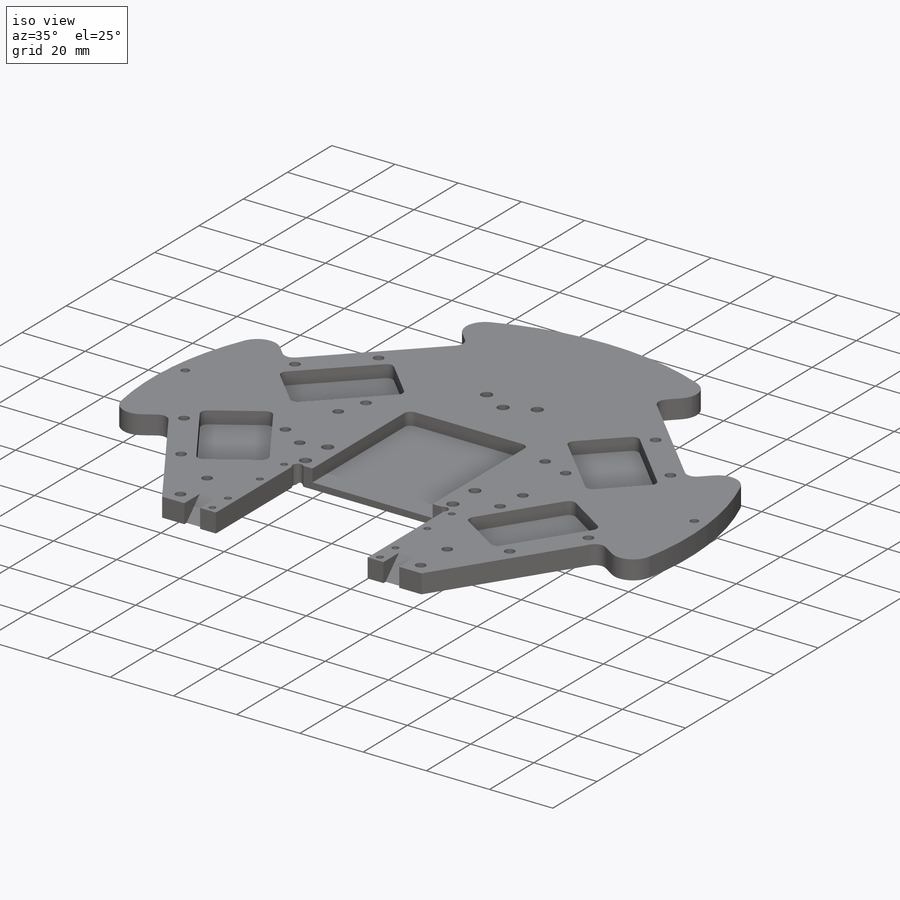
[diagram: iso view]
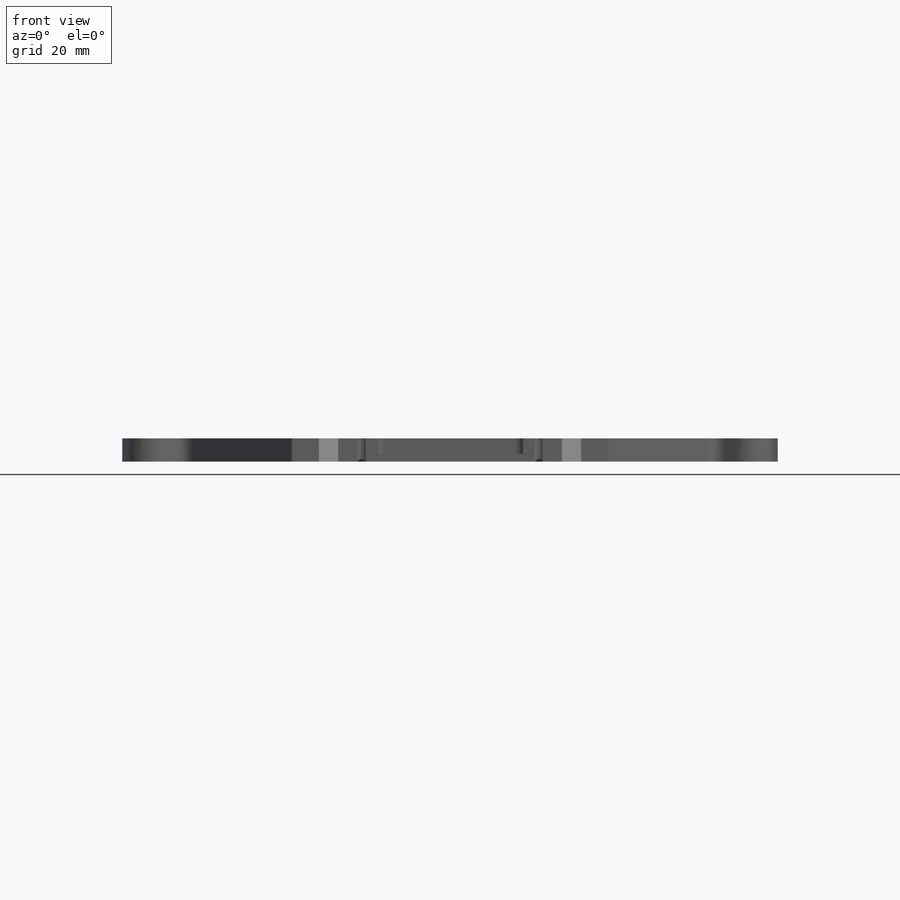
[diagram: front view]
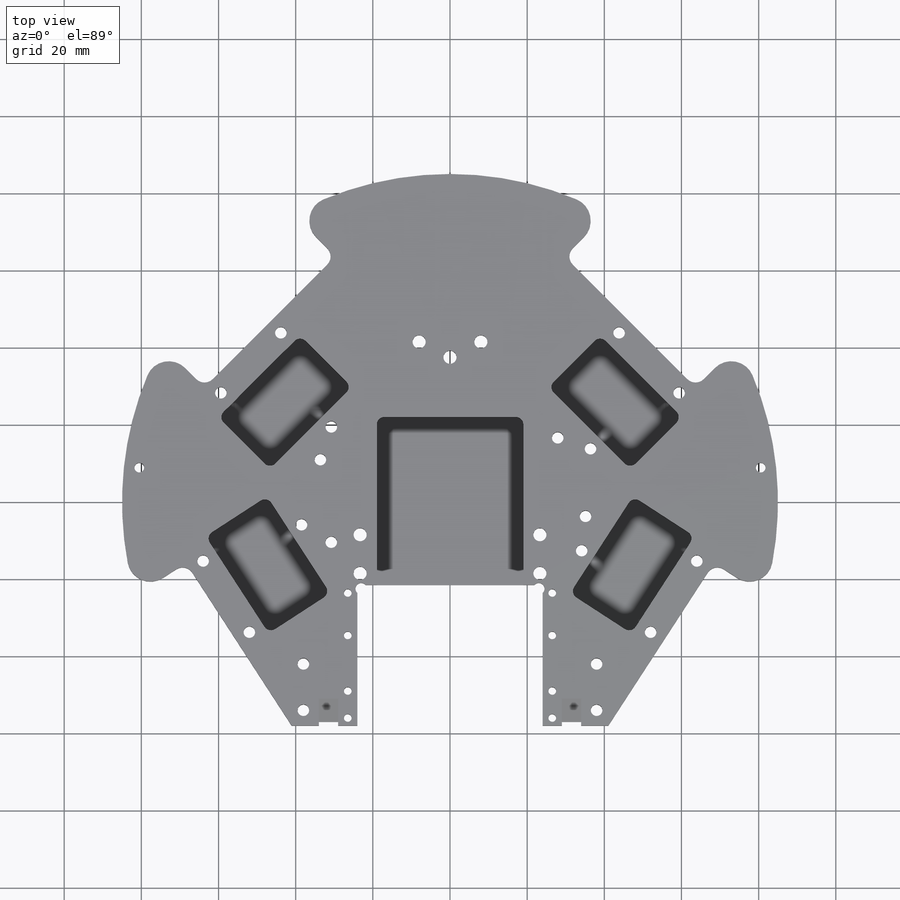
[diagram: top view]
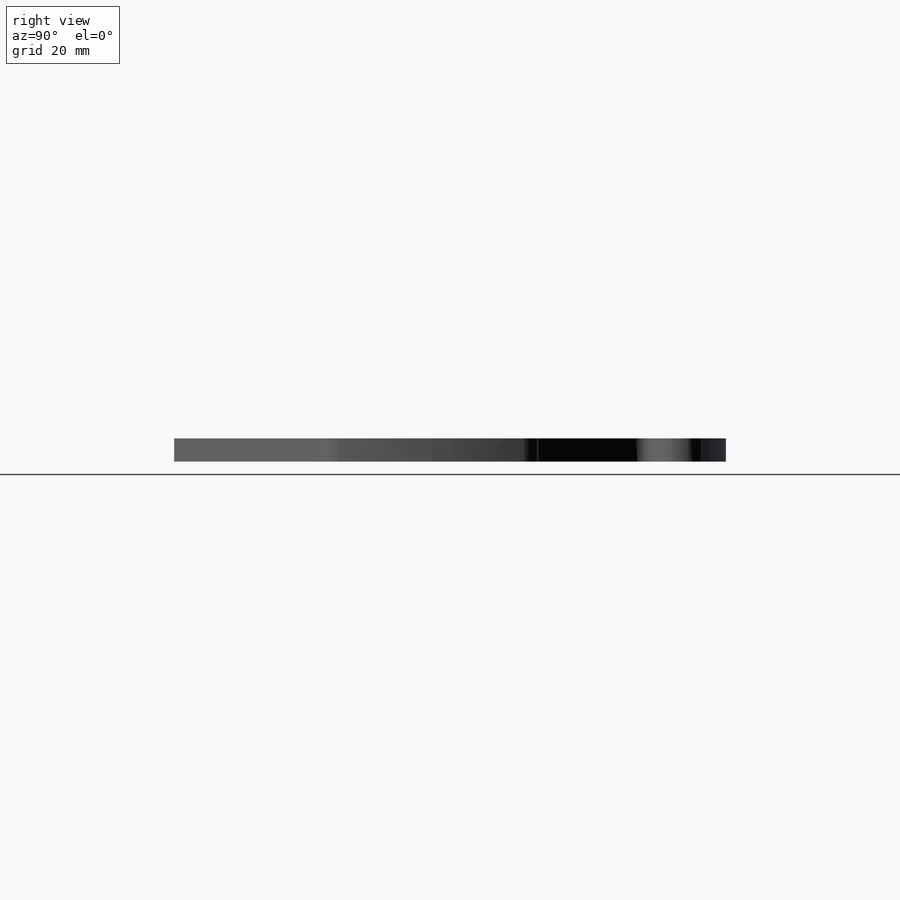
[diagram: right view]
SOLIDWORKS PART (.sldprt)
format: sldprt  version: not decoded by parser v0  size: 674,304 bytes
history: native  units: mm
features: sketch x14, cut_extrude x8, mirror x4, fillet x3, hole x2, thread x2, chamfer x2, material x1, extrude x1, plane x1 (+11 scaffold rows collapsed)
feature tree (49):
  scaffold x11  (default folders/planes/origin — collapsed)
  material  "Material <not specified>"
  sketch  "Sketch1"  dims[D1=170.0mm]
  extrude  "Boss-Extrude1"  Depth=6mm
  sketch  "Sketch2"  dims[c1.D8=3.0mm c1.D1=66.0mm c1.D2=48.0mm c1.D3=66.0mm c2.D3=~43.151248deg c3.D3=66.0mm c4.D3=45.0deg c4.D4=8.0mm c4.D5=19.0mm c4.D6=30.0mm c4.D7=3.0mm c4.D9=22.0mm c4.D10=4.0mm c4.D11=4.0mm]
  cut_extrude  "Cut-Extrude1"  [1 undecoded]
  sketch  "Sketch3"  dims[c1.D1=48.0mm c2.D1=~0.278133deg c3.D1=~29.992479mm c4.D1=~0.278133deg c5.D1=19.0mm c5.D2=30.0mm c5.D3=8.0mm c5.D4=3.0mm]
  cut_extrude  "Cut-Extrude2"  Depth=4mm
  fillet  "Fillet2"  Radius=2mm
  fillet  "Fillet3"  Radius=6mm
  fillet  "Fillet4"  Radius=3mm
  plane  "Plane1"
  mirror  "Mirror1"
  mirror  "Mirror2"
  sketch  "Sketch4"  dims[D1=48.0mm D2=36.5mm D3=21.5mm]
  cut_extrude  "Cut-Extrude3"  [1 undecoded]
  sketch  "Sketch5"  dims[D1=3.0mm D2=1.0mm D3=1.0mm D4=1.0mm]
  cut_extrude  "Cut-Extrude4"  [1 undecoded]
  sketch  "Sketch6"  dims[c1.D1=3.0mm c1.D6=3.0mm c1.D9=3.0mm c1.D12=3.0mm c1.D2=4.0mm c1.D3=8.0mm c1.D4=3.5mm c1.D5=11.0mm c2.D6=11.0mm c2.D7=4.0mm c2.D8=8.0mm c2.D10=4.0mm c2.D11=8.0mm c2.D13=4.0mm c2.D14=8.0mm c2.D15=11.0mm c2.D16=3.5mm c2.D17=11.0mm c2.D18=3.5mm c2.D19=11.0mm c2.D20=3.5mm]
  cut_extrude  "Cut-Extrude5"  [1 undecoded]
  sketch  "Sketch8"  dims[c1.D5=2.0mm c1.D6=3.0mm c1.D1=2.0mm c1.D2=7.0mm c1.D3=11.0mm c1.D4=14.4mm c1.D7=12.0mm c1.D8=4.2mm c1.D9=2.5mm c1.D10=~5.228114mm c2.D8=4.0mm c2.D10=14.0mm]
  cut_extrude  "Cut-Extrude7"  [1 undecoded]
  mirror  "Mirror3"
  sketch  "Sketch9"  dims[c1.D1=~5.226917mm c2.D1=45.0deg c2.D2=1.0mm]
  cut_extrude  "Cut-Extrude8"  Depth=5mm
  mirror  "Mirror4"
  sketch  "Sketch10"  dims[D4=2.0mm D1=5.0mm D2=5.0mm D3=43.5mm]
  cut_extrude  "Cut-Extrude9"  Depth=4mm
  sketch  "Sketch7"  dims[c1.D1=3.0mm c1.D5=3.0mm c1.D2=14.0mm c1.D3=5.0mm c1.D4=40.8mm c1.D6=10.0mm c1.D7=46.6mm c1.D8=3.0mm c1.D9=23.3mm c2.D4=45.5mm c2.D1=45.5mm c2.D3=4.0mm c2.D2=16.0mm c3.D4=23.3mm c3.D5=46.6mm c3.D1=50.0mm c3.D7=8.0mm]
  hole  "CSK for M3 Flat Head Machine Screw1"  Diameter=3.4mm Depth=6mm
  sketch  "Sketch12"
  sketch  "Sketch11"  dims[hole-wizard template sketch: 55 standard entries collapsed; hole parameters kept: c17.Thru Hole Depth=6.0mm c17.Near C'Sink Dia.=6.3mm c17.D4=~3.666174mm c17.Near C'Sink Angle=90.0deg]
  hole  "M3x0.5 Tapped Hole1"  Diameter=2.5mm Depth=6mm
  sketch  "Sketch14"  dims[D1=4.0mm D2=4.0mm]
  sketch  "Sketch13"  dims[hole-wizard template sketch: 54 standard entries collapsed; hole parameters kept: c17.Thru Tap Drill Dia.=2.5mm c17.Thru Tap Drill Depth=6.0mm c17.Near C'Sink Dia.=3.05mm c17.D4=~3.666174mm c17.Near C'Sink Angle=90.0deg]
  thread  "Hole Thread1"  Diameter=3mm  [1 undecoded]
  thread  "Hole Thread2"  Diameter=3mm  [1 undecoded]
  chamfer  "Chamfer1"  Distance=1.65mm Angle=45deg
  chamfer  "Chamfer2"  Distance=1mm Angle=45deg
decode coverage: 26 of 36 modeling features carry decoded parameters
note: ~ marks probable driven/reference dimensions
note: 7 parameter values undecoded
summary: no parameter record found for 5 features
note: suppression state not decoded; provenance and decode notes live in map.json
